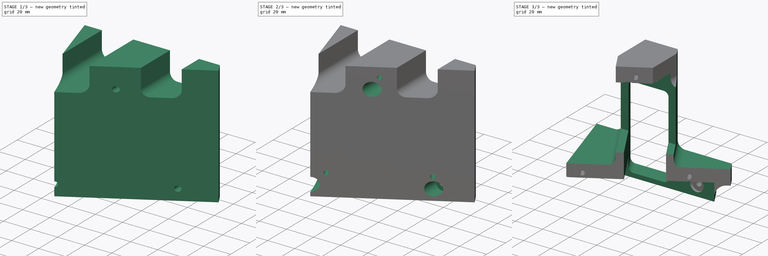
[diagram: build sequence overview — one tinted view per stage of 3, left to right]
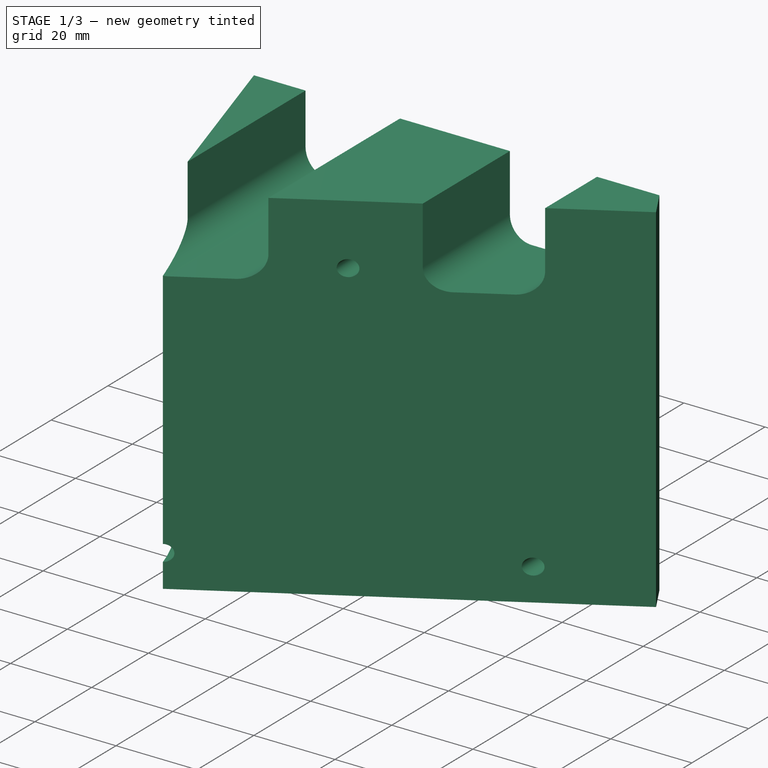
[diagram: stage 1 of 3 — iso view after this stage's code; geometry added in this stage tinted green]
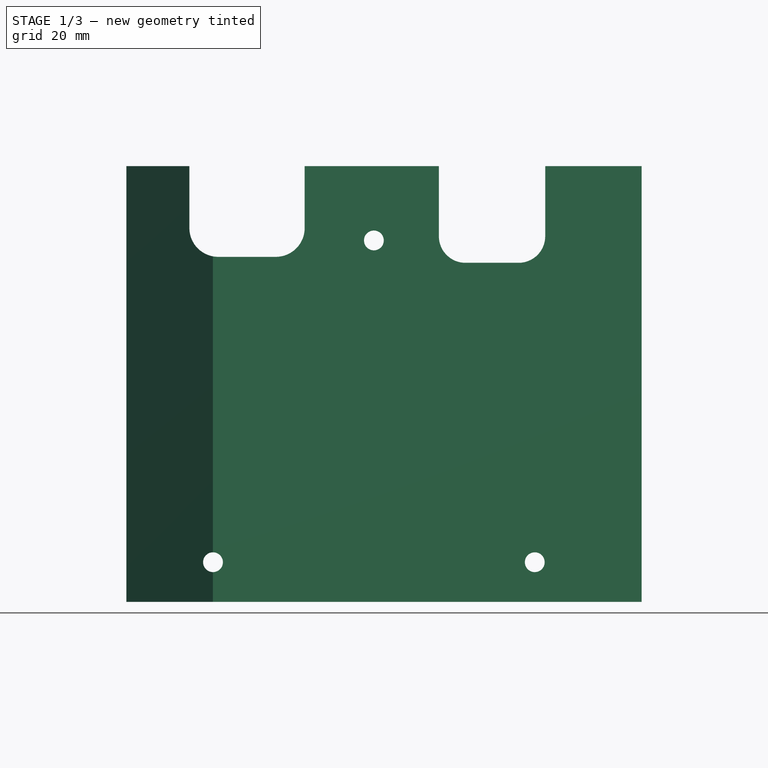
[diagram: stage 1 of 3 — front view after this stage's code; geometry added in this stage tinted green]
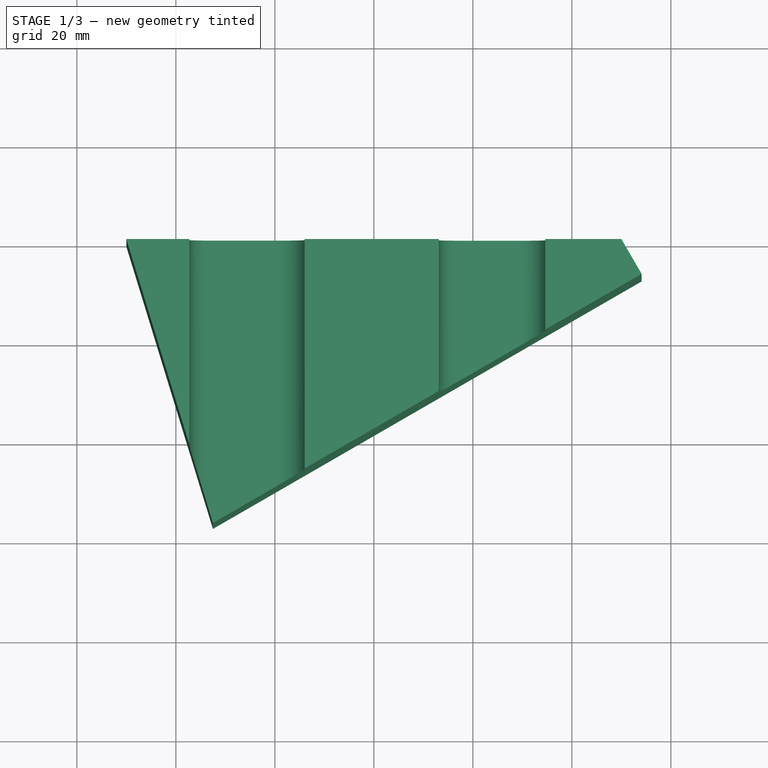
[diagram: stage 1 of 3 — top view after this stage's code; geometry added in this stage tinted green]
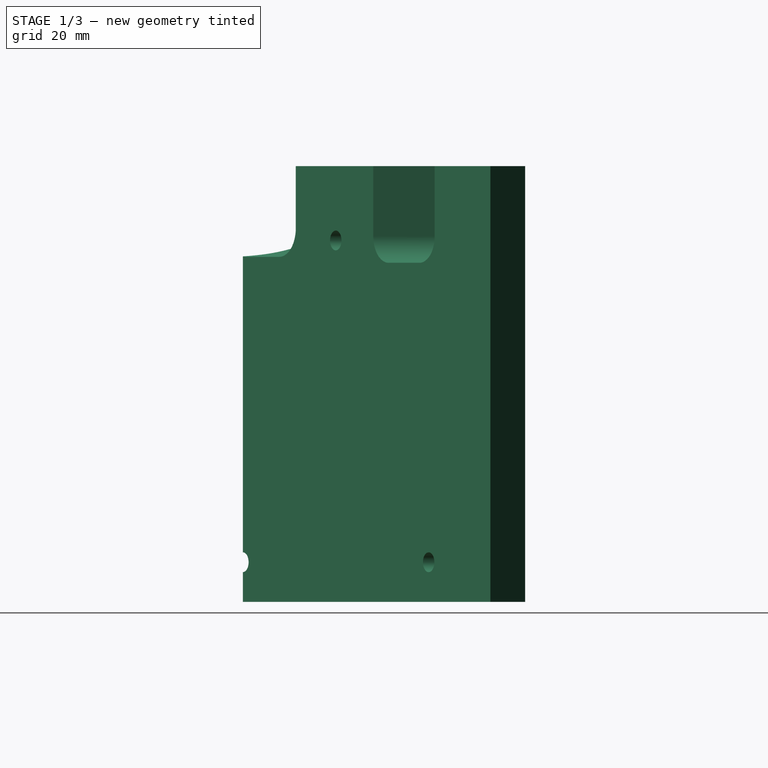
[diagram: stage 1 of 3 — right view after this stage's code; geometry added in this stage tinted green]
FCSTD DOCUMENT  (FreeCAD 0.21R33771 (Git))
Label: 20240615a_elfero_winkel_halter_haus_12
License: All rights reserved
LicenseURL: http://en.wikipedia.org/wiki/All_rights_reserved
objects: Sketcher::SketchObject×6, PartDesign::Pocket×5, PartDesign::Pad×1, PartDesign::Body×1
note: 19 computed .brp shape members not serialized (recipe doc carries the construction recipe); baked Part::Feature solids carry a one-line shape summary decoded from their .brp

FEATURE [Sketcher::SketchObject] Sketch
  FullyConstrained = true
  MapMode = 5
  Support = -> [XY_Plane]
  sketch-geometry (5):
    g0: LineSegment StartX=0 StartY=0 StartZ=0 EndX=-50 EndY=0 EndZ=0
    g1: LineSegment StartX=0 StartY=0 StartZ=0 EndX=50 EndY=0 EndZ=0
    g2: LineSegment StartX=54.0869 StartY=-7.03226 StartZ=0 EndX=-32.5156 EndY=-57.0323 EndZ=0
    g3: LineSegment StartX=54.0869 StartY=-7.03226 StartZ=0 EndX=50 EndY=0 EndZ=0
    g4: LineSegment StartX=-32.5156 StartY=-57.0323 StartZ=0 EndX=-50 EndY=0 EndZ=0
  constraints (14):
    c: Coincident(g0,g-1)
    c: Coincident(g1,g0)
    c: PointOnObject(g1,g-1)
    c: PointOnObject(g0,g-1)
    c: DistanceX(g0,g0) = 50
    c: DistanceX(g1,g1) = 50
    c: Distance(g2) = 100
    c: Coincident(g3,g2)
    c: Coincident(g3,g1)
    c: Coincident(g4,g2)
    c: Coincident(g4,g0)
    c: Angle(g2) = -2.61799
    c: DistanceX(g2) = 54.0869
    c: DistanceY(g2) = -7.03226
FEATURE [PartDesign::Pad] Pad
  Direction = (0,0,1)
  Length = 88
  Length2 = 10
  Profile = -> Sketch
  ReferenceAxis = -> Sketch [N_Axis]
  Type = 0
FEATURE [Sketcher::SketchObject] Sketch001
  FullyConstrained = false
  MapMode = 5
  Placement = pos=(0,0,0) rot=(1,0,0;1.5708rad)
  Support = -> [XZ_Plane]
  sketch-geometry (26):
    g0: Circle CenterX=-32.5 CenterY=8 CenterZ=0 NormalX=0 NormalY=0 NormalZ=1 AngleXU=0 Radius=2
    g1: Circle CenterX=32.5 CenterY=8 CenterZ=0 NormalX=0 NormalY=0 NormalZ=1 AngleXU=0 Radius=2
    g2: Circle CenterX=0 CenterY=73 CenterZ=0 NormalX=0 NormalY=0 NormalZ=1 AngleXU=0 Radius=2
    g3: LineSegment StartX=-32.5 StartY=8 StartZ=0 EndX=32.5 EndY=8 EndZ=0
    g4: LineSegment StartX=32.5 StartY=8 StartZ=0 EndX=0 EndY=73 EndZ=0
    g5: LineSegment StartX=0 StartY=73 StartZ=0 EndX=-32.5 EndY=8 EndZ=0
    g6: ArcOfCircle CenterX=-31.4489 CenterY=88.5599 CenterZ=0 NormalX=0 NormalY=0 NormalZ=1 AngleXU=0 Radius=5.82274 StartAngle=1.5708 EndAngle=3.14159
    g7: LineSegment StartX=-31.4489 StartY=94.3826 StartZ=0 EndX=-19.8034 EndY=94.3826 EndZ=0
    g8: ArcOfCircle CenterX=-19.8034 CenterY=88.5599 CenterZ=0 NormalX=0 NormalY=0 NormalZ=1 AngleXU=0 Radius=5.82274 StartAngle=1e-16 EndAngle=1.5708
    g9: LineSegment StartX=-13.9807 StartY=88.5599 StartZ=0 EndX=-13.9807 EndY=75.5089 EndZ=0
    g10: ArcOfCircle CenterX=-19.8034 CenterY=75.5089 CenterZ=0 NormalX=0 NormalY=0 NormalZ=1 AngleXU=0 Radius=5.82274 StartAngle=4.71239 EndAngle=6.28319
    g11: LineSegment StartX=-19.8034 StartY=69.6862 StartZ=0 EndX=-31.4489 EndY=69.6862 EndZ=0
    g12: ArcOfCircle CenterX=-31.4489 CenterY=75.5089 CenterZ=0 NormalX=0 NormalY=0 NormalZ=1 AngleXU=0 Radius=5.82274 StartAngle=3.14159 EndAngle=4.71239
    g13: LineSegment StartX=-37.2716 StartY=75.5089 StartZ=0 EndX=-37.2716 EndY=88.5599 EndZ=0
    g14: GeomPoint X=-37.2716 Y=94.3826 Z=0
    g15: GeomPoint X=-13.9807 Y=69.6862 Z=0
    g16: ArcOfCircle CenterX=18.4961 CenterY=93.0273 CenterZ=0 NormalX=0 NormalY=0 NormalZ=1 AngleXU=0 Radius=5.37097 StartAngle=1.5708 EndAngle=3.14159
    g17: LineSegment StartX=18.4961 StartY=98.3983 StartZ=0 EndX=29.2381 EndY=98.3983 EndZ=0
    g18: ArcOfCircle CenterX=29.2381 CenterY=93.0273 CenterZ=0 NormalX=0 NormalY=0 NormalZ=1 AngleXU=0 Radius=5.37097 StartAngle=1e-16 EndAngle=1.5708
    g19: LineSegment StartX=34.609 StartY=93.0273 StartZ=0 EndX=34.609 EndY=73.8525 EndZ=0
    g20: ArcOfCircle CenterX=29.2381 CenterY=73.8525 CenterZ=0 NormalX=0 NormalY=0 NormalZ=1 AngleXU=0 Radius=5.37097 StartAngle=4.71239 EndAngle=6.28319
    g21: LineSegment StartX=29.2381 StartY=68.4815 StartZ=0 EndX=18.4961 EndY=68.4815 EndZ=0
    g22: ArcOfCircle CenterX=18.4961 CenterY=73.8525 CenterZ=0 NormalX=0 NormalY=0 NormalZ=1 AngleXU=0 Radius=5.37097 StartAngle=3.14159 EndAngle=4.71239
    g23: LineSegment StartX=13.1252 StartY=73.8525 StartZ=0 EndX=13.1252 EndY=93.0273 EndZ=0
    g24: GeomPoint X=13.1252 Y=98.3983 Z=0
    g25: GeomPoint X=34.609 Y=68.4815 Z=0
  constraints (53):
    c: Equal(g2,g1)
    c: Equal(g1,g0)
    c: Coincident(g3,g0)
    c: Coincident(g3,g1)
    c: Coincident(g4,g1)
    c: Coincident(g4,g2)
    c: Coincident(g5,g2)
    c: PointOnObject(g2,g-2)
    c: Equal(g4,g5)
    c: Horizontal(g3)
    c: DistanceX(g3,g3) = 65
    c: Coincident(g5,g0)
    c: Distance(g2,g3) = 65
    c: Diameter(g1) = 4
    c: DistanceY(g0) = 8
    c: Tangent(g6,g7) = 1.5708
    c: Tangent(g7,g8) = 1.5708
    c: Tangent(g8,g9) = 1.5708
    c: Tangent(g9,g10) = 1.5708
    c: Tangent(g10,g11) = 1.5708
    c: Tangent(g11,g12) = 1.5708
    c: Tangent(g12,g13) = 1.5708
    c: Tangent(g13,g6) = 1.5708
    c: Horizontal(g7)
    c: Horizontal(g11)
    c: Vertical(g9)
    c: Vertical(g13)
    c: Equal(g6,g8)
    c: Equal(g8,g10)
    c: Equal(g10,g12)
    c: PointOnObject(g14,g7)
    c: PointOnObject(g14,g13)
    c: PointOnObject(g15,g9)
    c: PointOnObject(g15,g11)
    c: Tangent(g16,g17) = 1.5708
    c: Tangent(g17,g18) = 1.5708
    c: Tangent(g18,g19) = 1.5708
    c: Tangent(g19,g20) = 1.5708
    c: Tangent(g20,g21) = 1.5708
    c: Tangent(g21,g22) = 1.5708
    c: Tangent(g22,g23) = 1.5708
    c: Tangent(g23,g16) = 1.5708
    c: Horizontal(g17)
    c: Horizontal(g21)
    c: Vertical(g19)
    c: Vertical(g23)
    c: Equal(g16,g18)
    c: Equal(g18,g20)
    c: Equal(g20,g22)
    c: PointOnObject(g24,g17)
    c: PointOnObject(g24,g23)
    c: PointOnObject(g25,g19)
    c: PointOnObject(g25,g21)
FEATURE [PartDesign::Pocket] Pocket
  BaseFeature = -> Pad
  Direction = (0,1,2e-16)
  Length = 5
  Length2 = 5
  Midplane = true
  Profile = -> Sketch001
  ReferenceAxis = -> Sketch001 [N_Axis]
  Type = 1
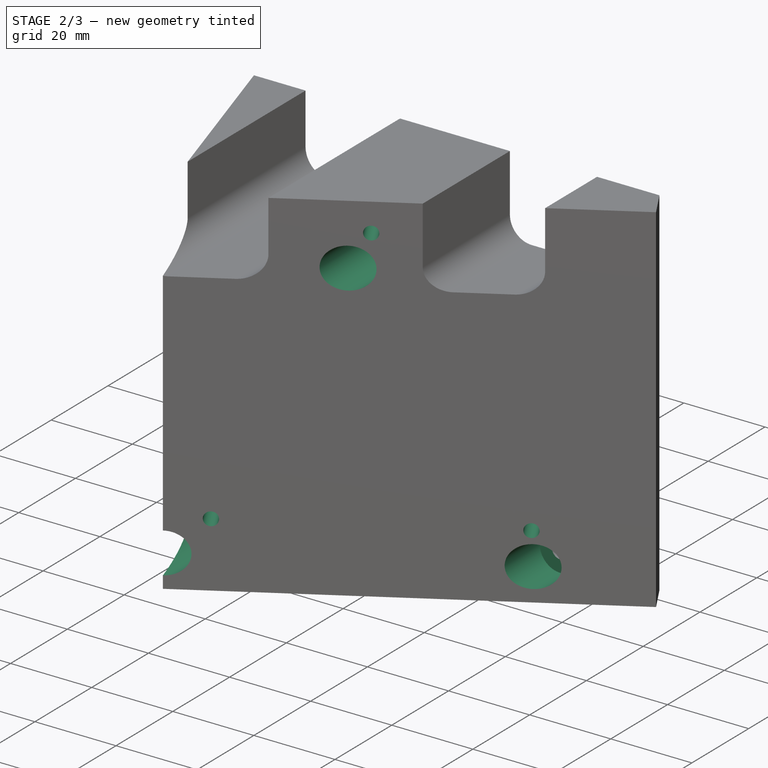
[diagram: stage 2 of 3 — iso view after this stage's code; geometry added in this stage tinted green]
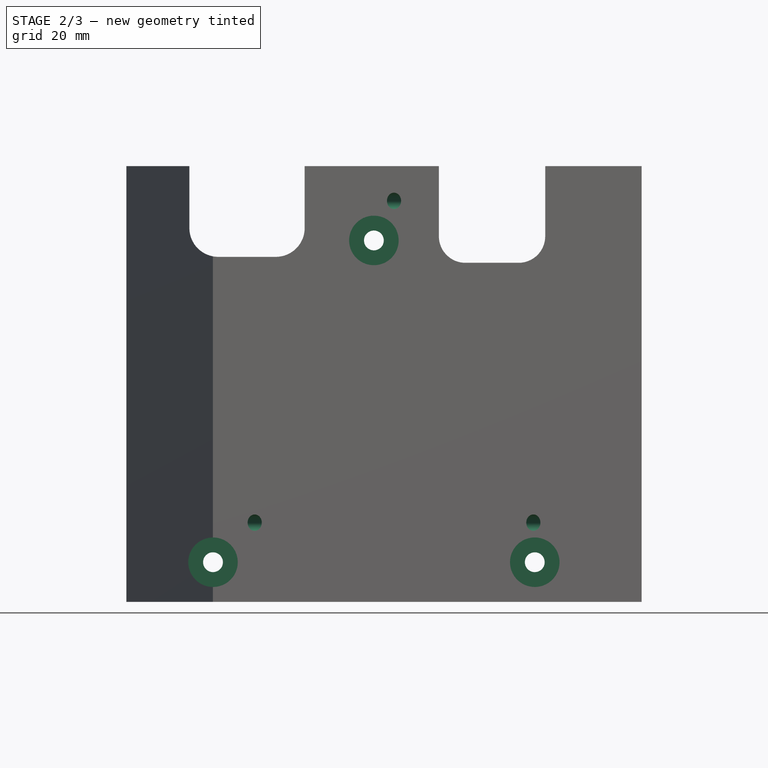
[diagram: stage 2 of 3 — front view after this stage's code; geometry added in this stage tinted green]
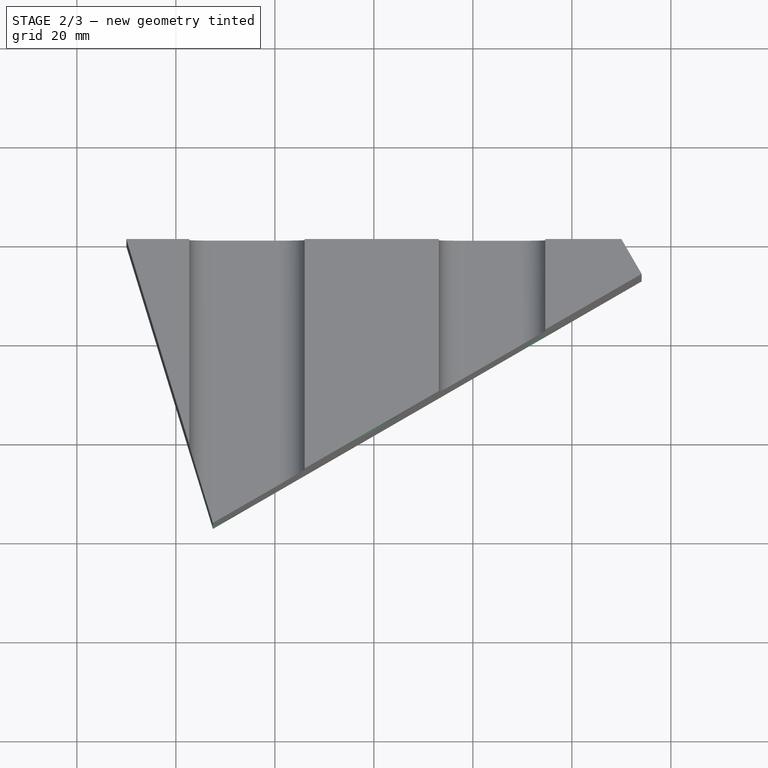
[diagram: stage 2 of 3 — top view after this stage's code; geometry added in this stage tinted green]
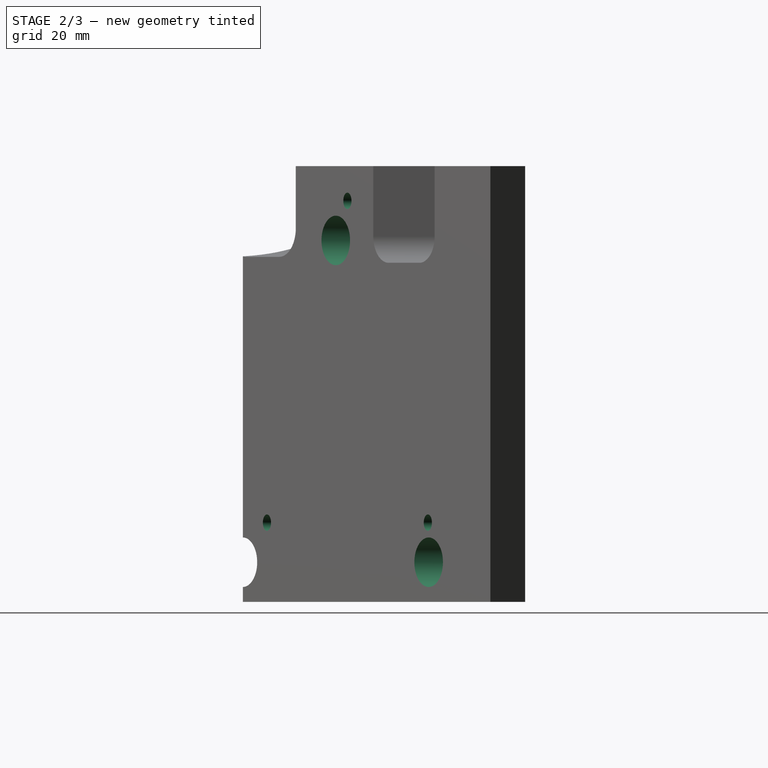
[diagram: stage 2 of 3 — right view after this stage's code; geometry added in this stage tinted green]
FEATURE [Sketcher::SketchObject] Sketch002
  AttachmentOffset = pos=(0,0,10) rot=(0,0,1;0rad)
  FullyConstrained = true
  MapMode = 5
  Placement = pos=(0,-10,-2.2e-15) rot=(1,0,0;1.5708rad)
  Support = -> [XZ_Plane]
  sketch-geometry (6):
    g0: Circle CenterX=-32.5 CenterY=8 CenterZ=0 NormalX=0 NormalY=0 NormalZ=1 AngleXU=0 Radius=5
    g1: Circle CenterX=32.5 CenterY=8 CenterZ=0 NormalX=0 NormalY=0 NormalZ=1 AngleXU=0 Radius=5
    g2: Circle CenterX=0 CenterY=73 CenterZ=0 NormalX=0 NormalY=0 NormalZ=1 AngleXU=0 Radius=5
    g3: LineSegment StartX=0 StartY=73 StartZ=0 EndX=32.5 EndY=8 EndZ=0
    g4: LineSegment StartX=0 StartY=73 StartZ=0 EndX=-32.5 EndY=8 EndZ=0
    g5: LineSegment StartX=-32.5 StartY=8 StartZ=0 EndX=32.5 EndY=8 EndZ=0
  constraints (15):
    c: PointOnObject(g2,g-2)
    c: Coincident(g3,g2)
    c: Coincident(g3,g1)
    c: Coincident(g4,g2)
    c: Coincident(g4,g0)
    c: Coincident(g5,g0)
    c: Coincident(g5,g1)
    c: Horizontal(g5)
    c: DistanceX(g5,g5) = 65
    c: Equal(g3,g4)
    c: Distance(g2,g5) = 65
    c: DistanceY(g1) = 8
    c: Equal(g2,g1)
    c: Equal(g1,g0)
    c: Diameter(g2) = 10
FEATURE [PartDesign::Pocket] Pocket001
  BaseFeature = -> Pocket
  Direction = (0,1,2e-16)
  Length = 5
  Length2 = 5
  Profile = -> Sketch002
  ReferenceAxis = -> Sketch002 [N_Axis]
  Reversed = true
  Type = 1
FEATURE [Sketcher::SketchObject] Sketch003
  FullyConstrained = false
  MapMode = 5
  Placement = pos=(16.5668,-28.6945,0) rot=(0.935113,0.250563,0.250563;1.63783rad)
  Support = -> [Pocket001]
  sketch-geometry (7):
    g0: Circle CenterX=18.0691 CenterY=16 CenterZ=0 NormalX=0 NormalY=0 NormalZ=1 AngleXU=0 Radius=1.65
    g1: Circle CenterX=-46.9309 CenterY=16 CenterZ=0 NormalX=0 NormalY=0 NormalZ=1 AngleXU=0 Radius=1.65
    g2: Circle CenterX=-14.4309 CenterY=81 CenterZ=0 NormalX=0 NormalY=0 NormalZ=1 AngleXU=0 Radius=1.65
    g3: LineSegment StartX=-46.9309 StartY=16 StartZ=0 EndX=18.0691 EndY=16 EndZ=0
    g4: LineSegment StartX=-14.4309 StartY=81 StartZ=0 EndX=18.0691 EndY=16 EndZ=0
    g5: LineSegment StartX=-14.4309 StartY=81 StartZ=0 EndX=-46.9309 EndY=16 EndZ=0
    g6: GeomPoint X=6.0125 Y=96.833 Z=0
  constraints (14):
    c: Equal(g2,g1)
    c: Equal(g1,g0)
    c: Coincident(g3,g1)
    c: Coincident(g3,g0)
    c: Horizontal(g3)
    c: Coincident(g4,g2)
    c: Coincident(g4,g0)
    c: Coincident(g5,g2)
    c: Coincident(g5,g1)
    c: Equal(g5,g4)
    c: DistanceX(g3,g3) = 65
    c: Distance(g2,g3) = 65
    c: Diameter(g2) = 3.3
    c: DistanceY(g0) = 16
FEATURE [PartDesign::Pocket] Pocket002  label="M4"
  BaseFeature = -> Pocket001
  Direction = (-0.5,0.866025,-1e-16)
  Length = 28
  Length2 = 5
  Profile = -> Sketch003
  ReferenceAxis = -> Sketch003 [N_Axis]
  Type = 0
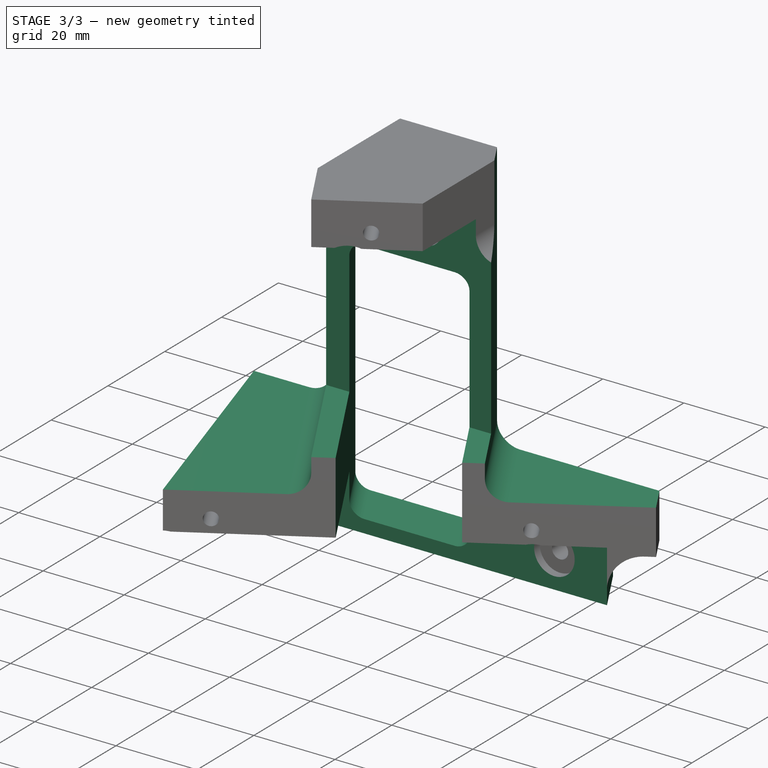
[diagram: stage 3 of 3 — iso view after this stage's code; geometry added in this stage tinted green]
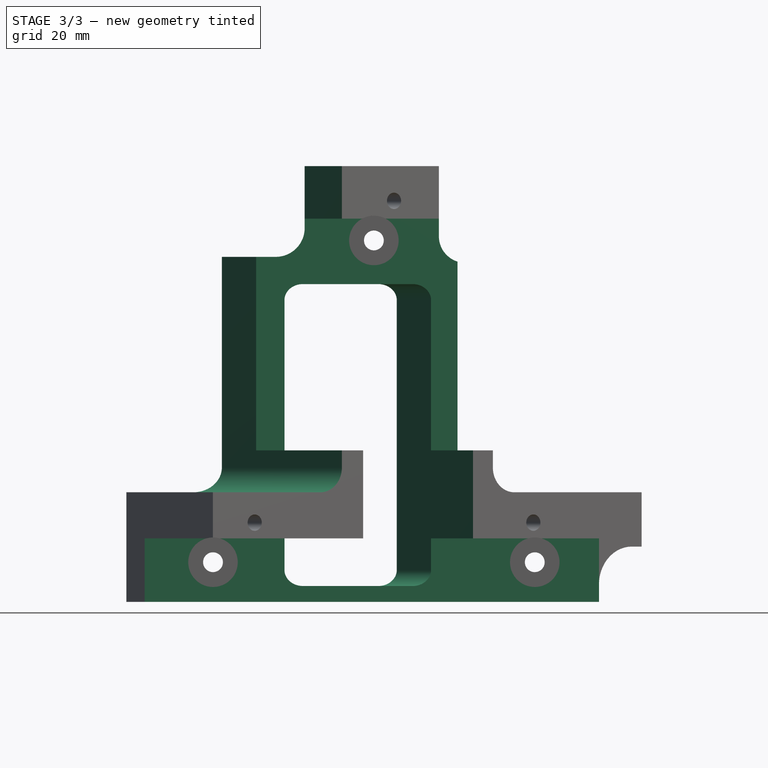
[diagram: stage 3 of 3 — front view after this stage's code; geometry added in this stage tinted green]
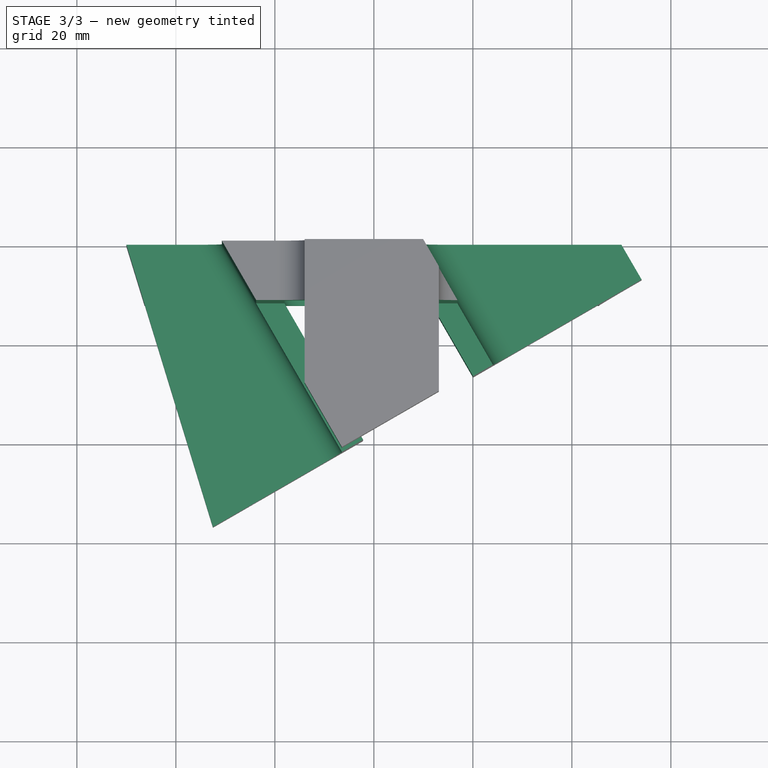
[diagram: stage 3 of 3 — top view after this stage's code; geometry added in this stage tinted green]
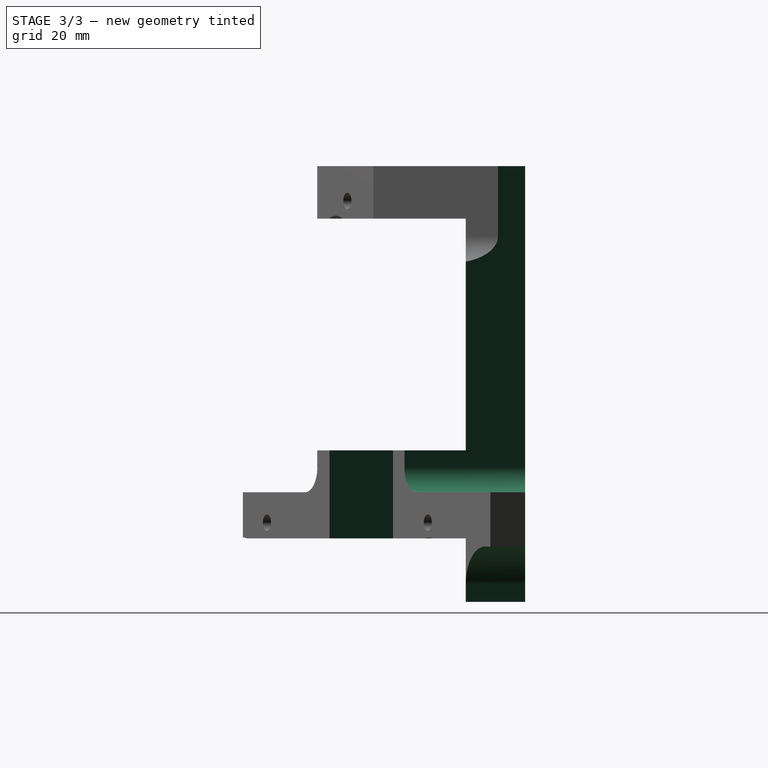
[diagram: stage 3 of 3 — right view after this stage's code; geometry added in this stage tinted green]
FEATURE [Sketcher::SketchObject] Sketch004
  FullyConstrained = false
  MapMode = 5
  Placement = pos=(16.5668,-28.6945,0) rot=(0.935113,0.250563,0.250563;1.63783rad)
  Support = -> [Pocket002]
  sketch-geometry (41):
    g0: ArcOfCircle CenterX=13.6216 CenterY=94.3753 CenterZ=0 NormalX=0 NormalY=0 NormalZ=1 AngleXU=0 Radius=5 StartAngle=1.5708 EndAngle=3.14159
    g1: LineSegment StartX=13.6216 StartY=99.3753 StartZ=0 EndX=44.7394 EndY=99.3753 EndZ=0
    g2: ArcOfCircle CenterX=44.7394 CenterY=94.3753 CenterZ=0 NormalX=0 NormalY=0 NormalZ=1 AngleXU=0 Radius=5 StartAngle=5e-16 EndAngle=1.5708
    g3: LineSegment StartX=49.7394 StartY=94.3753 StartZ=0 EndX=49.7394 EndY=27.1253 EndZ=0
    g4: ArcOfCircle CenterX=44.7394 CenterY=27.1253 CenterZ=0 NormalX=0 NormalY=0 NormalZ=1 AngleXU=0 Radius=5 StartAngle=4.71239 EndAngle=6.28319
    g5: LineSegment StartX=44.7394 StartY=22.1253 StartZ=0 EndX=13.6216 EndY=22.1253 EndZ=0
    g6: ArcOfCircle CenterX=13.6216 CenterY=27.1253 CenterZ=0 NormalX=0 NormalY=0 NormalZ=1 AngleXU=0 Radius=5 StartAngle=3.14159 EndAngle=4.71239
    g7: LineSegment StartX=8.62156 StartY=27.1253 StartZ=0 EndX=8.62156 EndY=94.3753 EndZ=0
    g8: GeomPoint X=8.62156 Y=99.3753 Z=0
    g9: GeomPoint X=49.7394 Y=22.1253 Z=0
    g10: ArcOfCircle CenterX=-82.3407 CenterY=100.635 CenterZ=0 NormalX=0 NormalY=0 NormalZ=1 AngleXU=0 Radius=5 StartAngle=1.5708 EndAngle=3.14159
    g11: LineSegment StartX=-82.3407 StartY=105.635 StartZ=0 EndX=-31.5975 EndY=105.635 EndZ=0
    g12: ArcOfCircle CenterX=-31.5975 CenterY=100.635 CenterZ=0 NormalX=0 NormalY=0 NormalZ=1 AngleXU=0 Radius=5 StartAngle=-9e-16 EndAngle=1.5708
    g13: LineSegment StartX=-26.5975 StartY=100.635 StartZ=0 EndX=-26.5975 EndY=27.1253 EndZ=0
    g14: ArcOfCircle CenterX=-31.5975 CenterY=27.1253 CenterZ=0 NormalX=0 NormalY=0 NormalZ=1 AngleXU=0 Radius=5 StartAngle=4.71239 EndAngle=6.28319
    g15: LineSegment StartX=-31.5975 StartY=22.1253 StartZ=0 EndX=-82.3407 EndY=22.1253 EndZ=0
    g16: ArcOfCircle CenterX=-82.3407 CenterY=27.1253 CenterZ=0 NormalX=0 NormalY=0 NormalZ=1 AngleXU=0 Radius=5 StartAngle=3.14159 EndAngle=4.71239
    g17: LineSegment StartX=-87.3407 StartY=27.1253 StartZ=0 EndX=-87.3407 EndY=100.635 EndZ=0
    g18: GeomPoint X=-87.3407 Y=105.635 Z=0
    g19: GeomPoint X=-26.5975 Y=22.1253 Z=0
    g20: LineSegment StartX=-31.5975 StartY=22.1253 StartZ=0 EndX=13.6216 EndY=22.1253 EndZ=0
    g21: ArcOfCircle CenterX=-18.4163 CenterY=60.9561 CenterZ=0 NormalX=0 NormalY=0 NormalZ=1 AngleXU=0 Radius=3.22646 StartAngle=1.5708 EndAngle=3.14159
    g22: LineSegment StartX=-18.4163 StartY=64.1826 StartZ=0 EndX=0.776334 EndY=64.1826 EndZ=0
    g23: ArcOfCircle CenterX=0.776334 CenterY=60.9561 CenterZ=0 NormalX=0 NormalY=0 NormalZ=1 AngleXU=0 Radius=3.22646 StartAngle=-9e-16 EndAngle=1.5708
    g24: LineSegment StartX=4.00279 StartY=60.9561 StartZ=0 EndX=4.00279 EndY=6.42005 EndZ=0
    g25: ArcOfCircle CenterX=0.776334 CenterY=6.42005 CenterZ=0 NormalX=0 NormalY=0 NormalZ=1 AngleXU=0 Radius=3.22646 StartAngle=4.71239 EndAngle=6.28319
    g26: LineSegment StartX=0.776334 StartY=3.19359 StartZ=0 EndX=-18.4163 EndY=3.19359 EndZ=0
    g27: ArcOfCircle CenterX=-18.4163 CenterY=6.42005 CenterZ=0 NormalX=0 NormalY=0 NormalZ=1 AngleXU=0 Radius=3.22646 StartAngle=3.14159 EndAngle=4.71239
    g28: LineSegment StartX=-21.6428 StartY=6.42005 StartZ=0 EndX=-21.6428 EndY=60.9561 EndZ=0
    g29: GeomPoint X=-21.6428 Y=64.1826 Z=0
    g30: GeomPoint X=4.00279 Y=3.19359 Z=0
    g31: ArcOfCircle CenterX=41.0418 CenterY=-13.986 CenterZ=0 NormalX=0 NormalY=0 NormalZ=1 AngleXU=0 Radius=7.67004 StartAngle=3.14159 EndAngle=4.71239
    g32: LineSegment StartX=33.3718 StartY=-13.986 StartZ=0 EndX=33.3718 EndY=3.4851 EndZ=0
    g33: ArcOfCircle CenterX=41.0418 CenterY=3.4851 CenterZ=0 NormalX=0 NormalY=0 NormalZ=1 AngleXU=0 Radius=7.67004 StartAngle=1.5708 EndAngle=3.14159
    g34: LineSegment StartX=41.0418 StartY=11.1551 StartZ=0 EndX=57.2191 EndY=11.1551 EndZ=0
    g35: ArcOfCircle CenterX=57.2191 CenterY=3.4851 CenterZ=0 NormalX=0 NormalY=0 NormalZ=1 AngleXU=0 Radius=7.67004 StartAngle=1e-16 EndAngle=1.5708
    g36: LineSegment StartX=64.8891 StartY=3.4851 StartZ=0 EndX=64.8891 EndY=-13.986 EndZ=0
    g37: ArcOfCircle CenterX=57.2191 CenterY=-13.986 CenterZ=0 NormalX=0 NormalY=0 NormalZ=1 AngleXU=0 Radius=7.67004 StartAngle=4.71239 EndAngle=6.28319
    g38: LineSegment StartX=57.2191 StartY=-21.656 StartZ=0 EndX=41.0418 EndY=-21.656 EndZ=0
    g39: GeomPoint X=33.3718 Y=-21.656 Z=0
    g40: GeomPoint X=64.8891 Y=11.1551 Z=0
  constraints (81):
    c: Tangent(g0,g1) = 1.5708
    c: Tangent(g1,g2) = 1.5708
    c: Tangent(g2,g3) = 1.5708
    c: Tangent(g3,g4) = 1.5708
    c: Tangent(g4,g5) = 1.5708
    c: Tangent(g5,g6) = 1.5708
    c: Tangent(g6,g7) = 1.5708
    c: Tangent(g7,g0) = 1.5708
    c: Horizontal(g1)
    c: Horizontal(g5)
    c: Vertical(g3)
    c: Vertical(g7)
    c: Equal(g0,g2)
    c: Equal(g2,g4)
    c: Equal(g4,g6)
    c: PointOnObject(g8,g1)
    c: PointOnObject(g8,g7)
    c: PointOnObject(g9,g3)
    c: PointOnObject(g9,g5)
    c: Tangent(g10,g11) = 1.5708
    c: Tangent(g11,g12) = 1.5708
    c: Tangent(g12,g13) = 1.5708
    c: Tangent(g13,g14) = 1.5708
    c: Tangent(g14,g15) = 1.5708
    c: Tangent(g15,g16) = 1.5708
    c: Tangent(g16,g17) = 1.5708
    c: Tangent(g17,g10) = 1.5708
    c: Horizontal(g11)
    c: Horizontal(g15)
    c: Vertical(g13)
    c: Vertical(g17)
    c: Equal(g10,g12)
    c: Equal(g12,g14)
    c: Equal(g14,g16)
    c: PointOnObject(g18,g11)
    c: PointOnObject(g18,g17)
    c: PointOnObject(g19,g13)
    c: PointOnObject(g19,g15)
    c: Coincident(g20,g14)
    c: Coincident(g20,g5)
    c: Tangent(g20,g14)
    c: Tangent(g21,g22) = 1.5708
    c: Tangent(g22,g23) = 1.5708
    c: Tangent(g23,g24) = 1.5708
    c: Tangent(g24,g25) = 1.5708
    c: Tangent(g25,g26) = 1.5708
    c: Tangent(g26,g27) = 1.5708
    c: Tangent(g27,g28) = 1.5708
    c: Tangent(g28,g21) = 1.5708
    c: Horizontal(g22)
    c: Horizontal(g26)
    c: Vertical(g24)
    c: Vertical(g28)
    c: Equal(g21,g23)
    c: Equal(g23,g25)
    c: Equal(g25,g27)
    c: PointOnObject(g29,g22)
    c: PointOnObject(g29,g28)
    c: PointOnObject(g30,g24)
    c: PointOnObject(g30,g26)
    c: Tangent(g31,g32) = 1.5708
    c: Tangent(g32,g33) = 1.5708
    c: Tangent(g33,g34) = 1.5708
    c: Tangent(g34,g35) = 1.5708
    c: Tangent(g35,g36) = 1.5708
    c: Tangent(g36,g37) = 1.5708
    c: Tangent(g37,g38) = 1.5708
    c: Tangent(g38,g31) = 1.5708
    c: Horizontal(g34)
    c: Horizontal(g38)
    c: Vertical(g32)
    c: Vertical(g36)
    c: Equal(g31,g33)
    c: Equal(g33,g35)
    c: Equal(g35,g37)
    c: PointOnObject(g39,g32)
    c: PointOnObject(g39,g38)
    c: PointOnObject(g40,g34)
    c: PointOnObject(g40,g36)
    c: Radius(g14) = 5
    c: Radius(g6) = 5
FEATURE [PartDesign::Pocket] Pocket003  label="weg"
  BaseFeature = -> Pocket002
  Direction = (-0.5,0.866025,-1e-16)
  Length = 5
  Length2 = 5
  Profile = -> Sketch004
  ReferenceAxis = -> Sketch004 [N_Axis]
  Type = 1
FEATURE [Sketcher::SketchObject] Sketch005
  AttachmentOffset = pos=(0,0,12) rot=(0,0,1;0rad)
  FullyConstrained = false
  MapMode = 5
  Placement = pos=(0,-12,-2.7e-15) rot=(1,0,0;1.5708rad)
  Support = -> [XZ_Plane]
  sketch-geometry (20):
    g0: ArcOfCircle CenterX=-72.5629 CenterY=-4.90996 CenterZ=0 NormalX=0 NormalY=0 NormalZ=1 AngleXU=0 Radius=17.7281 StartAngle=1.5708 EndAngle=3.14159
    g1: LineSegment StartX=-72.5629 StartY=12.8181 StartZ=0 EndX=82.1466 EndY=12.8181 EndZ=0
    g2: ArcOfCircle CenterX=82.1466 CenterY=-4.90996 CenterZ=0 NormalX=0 NormalY=0 NormalZ=1 AngleXU=0 Radius=17.7281 StartAngle=1e-16 EndAngle=1.5708
    g3: LineSegment StartX=99.8747 StartY=-4.90996 StartZ=0 EndX=99.8747 EndY=-39.9313 EndZ=0
    g4: ArcOfCircle CenterX=82.1466 CenterY=-39.9313 CenterZ=0 NormalX=0 NormalY=0 NormalZ=1 AngleXU=0 Radius=17.7281 StartAngle=4.71239 EndAngle=6.28319
    g5: LineSegment StartX=82.1466 StartY=-57.6594 StartZ=0 EndX=-72.5629 EndY=-57.6594 EndZ=0
    g6: ArcOfCircle CenterX=-72.5629 CenterY=-39.9313 CenterZ=0 NormalX=0 NormalY=0 NormalZ=1 AngleXU=0 Radius=17.7281 StartAngle=3.14159 EndAngle=4.71239
    g7: LineSegment StartX=-90.291 StartY=-39.9313 StartZ=0 EndX=-90.291 EndY=-4.90996 EndZ=0
    g8: GeomPoint X=-90.291 Y=12.8181 Z=0
    g9: GeomPoint X=99.8747 Y=-57.6594 Z=0
    g10: ArcOfCircle CenterX=-53.6742 CenterY=64.5344 CenterZ=0 NormalX=0 NormalY=0 NormalZ=1 AngleXU=0 Radius=12.8695 StartAngle=1.5708 EndAngle=3.14159
    g11: LineSegment StartX=-53.6742 StartY=77.4039 StartZ=0 EndX=56.1052 EndY=77.4039 EndZ=0
    g12: ArcOfCircle CenterX=56.1052 CenterY=64.5344 CenterZ=0 NormalX=0 NormalY=0 NormalZ=1 AngleXU=0 Radius=12.8695 StartAngle=0 EndAngle=1.5708
    g13: LineSegment StartX=68.9747 StartY=64.5344 StartZ=0 EndX=68.9747 EndY=43.4491 EndZ=0
    g14: ArcOfCircle CenterX=56.1052 CenterY=43.4491 CenterZ=0 NormalX=0 NormalY=0 NormalZ=1 AngleXU=0 Radius=12.8695 StartAngle=4.71239 EndAngle=6.28319
    g15: LineSegment StartX=56.1052 StartY=30.5796 StartZ=0 EndX=-53.6742 EndY=30.5796 EndZ=0
    g16: ArcOfCircle CenterX=-53.6742 CenterY=43.4491 CenterZ=0 NormalX=0 NormalY=0 NormalZ=1 AngleXU=0 Radius=12.8695 StartAngle=3.14159 EndAngle=4.71239
    g17: LineSegment StartX=-66.5437 StartY=43.4491 StartZ=0 EndX=-66.5437 EndY=64.5344 EndZ=0
    g18: GeomPoint X=-66.5437 Y=77.4039 Z=0
    g19: GeomPoint X=68.9747 Y=30.5796 Z=0
  constraints (38):
    c: Tangent(g0,g1) = 1.5708
    c: Tangent(g1,g2) = 1.5708
    c: Tangent(g2,g3) = 1.5708
    c: Tangent(g3,g4) = 1.5708
    c: Tangent(g4,g5) = 1.5708
    c: Tangent(g5,g6) = 1.5708
    c: Tangent(g6,g7) = 1.5708
    c: Tangent(g7,g0) = 1.5708
    c: Horizontal(g1)
    c: Horizontal(g5)
    c: Vertical(g3)
    c: Vertical(g7)
    c: Equal(g0,g2)
    c: Equal(g2,g4)
    c: Equal(g4,g6)
    c: PointOnObject(g8,g1)
    c: PointOnObject(g8,g7)
    c: PointOnObject(g9,g3)
    c: PointOnObject(g9,g5)
    c: Tangent(g10,g11) = 1.5708
    c: Tangent(g11,g12) = 1.5708
    c: Tangent(g12,g13) = 1.5708
    c: Tangent(g13,g14) = 1.5708
    c: Tangent(g14,g15) = 1.5708
    c: Tangent(g15,g16) = 1.5708
    c: Tangent(g16,g17) = 1.5708
    c: Tangent(g17,g10) = 1.5708
    c: Horizontal(g11)
    c: Horizontal(g15)
    c: Vertical(g13)
    c: Vertical(g17)
    c: Equal(g10,g12)
    c: Equal(g12,g14)
    c: Equal(g14,g16)
    c: PointOnObject(g18,g11)
    c: PointOnObject(g18,g17)
    c: PointOnObject(g19,g13)
    c: PointOnObject(g19,g15)
FEATURE [PartDesign::Pocket] Pocket004
  BaseFeature = -> Pocket003
  Direction = (0,1,2e-16)
  Length = 5
  Length2 = 5
  Profile = -> Sketch005
  ReferenceAxis = -> Sketch005 [N_Axis]
  Reversed = true
  Type = 1
FEATURE [PartDesign::Body] Body  label="body"
  Group = -> [Sketch,Pad,Sketch001,Pocket,Sketch002,Pocket001,Sketch003,Pocket002,Sketch004,Pocket003,Sketch005,Pocket004]
  Origin = -> Origin
  Tip = -> Pocket004
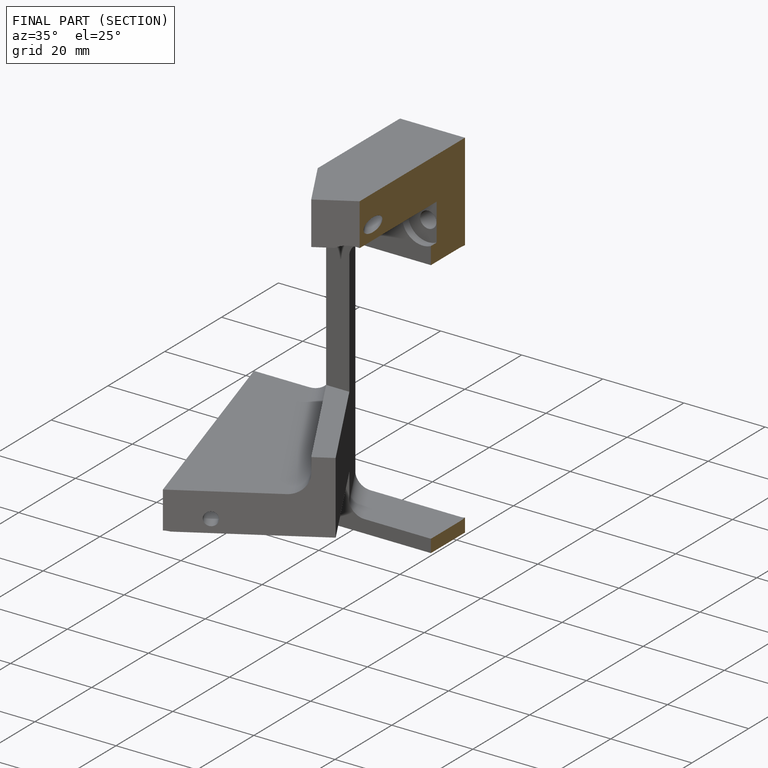
[diagram: finished part — half-section view (interior)]
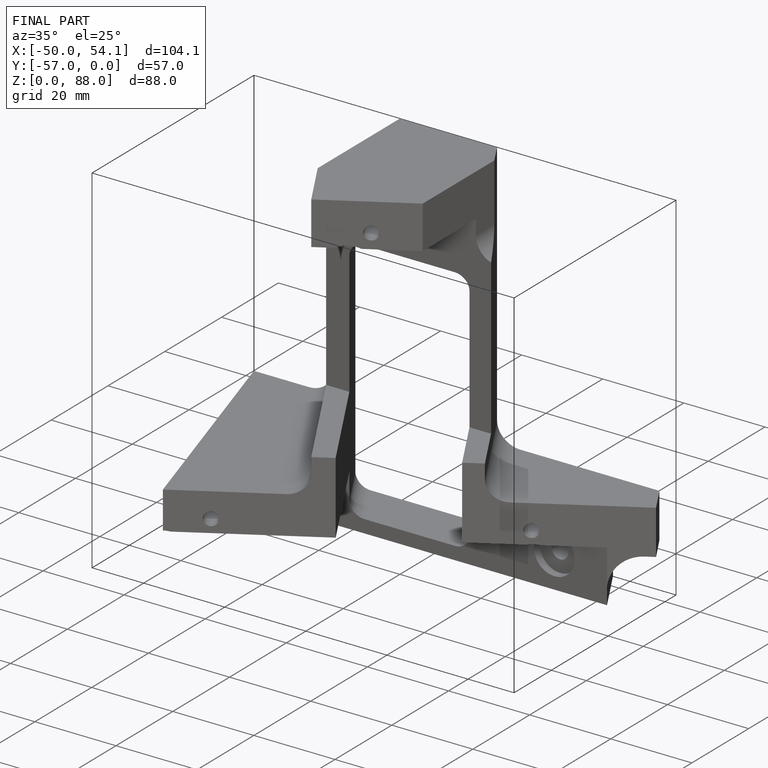
[diagram: finished part — iso view with bounding-box wireframe]
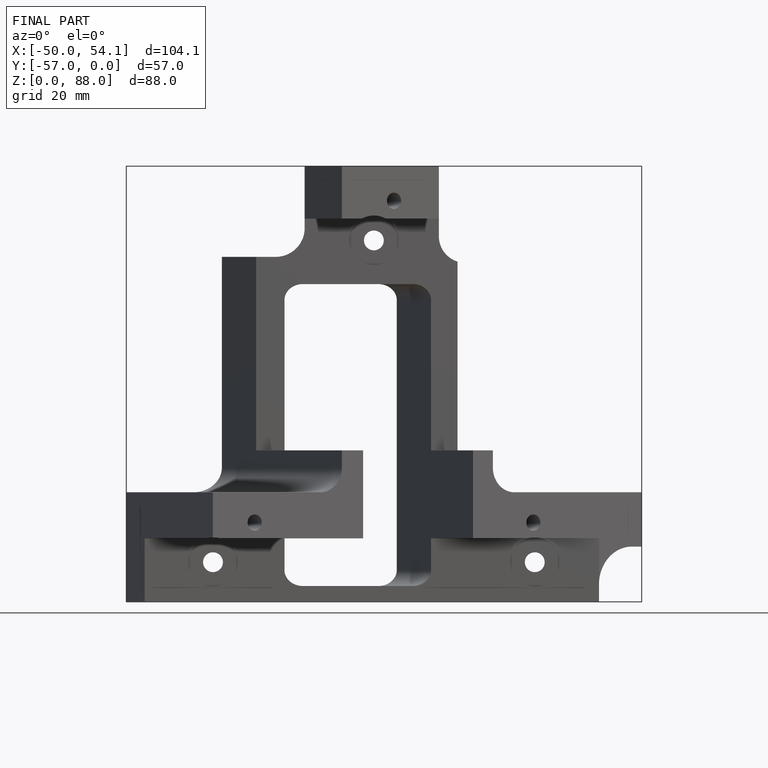
[diagram: finished part — front view with bounding-box wireframe]
